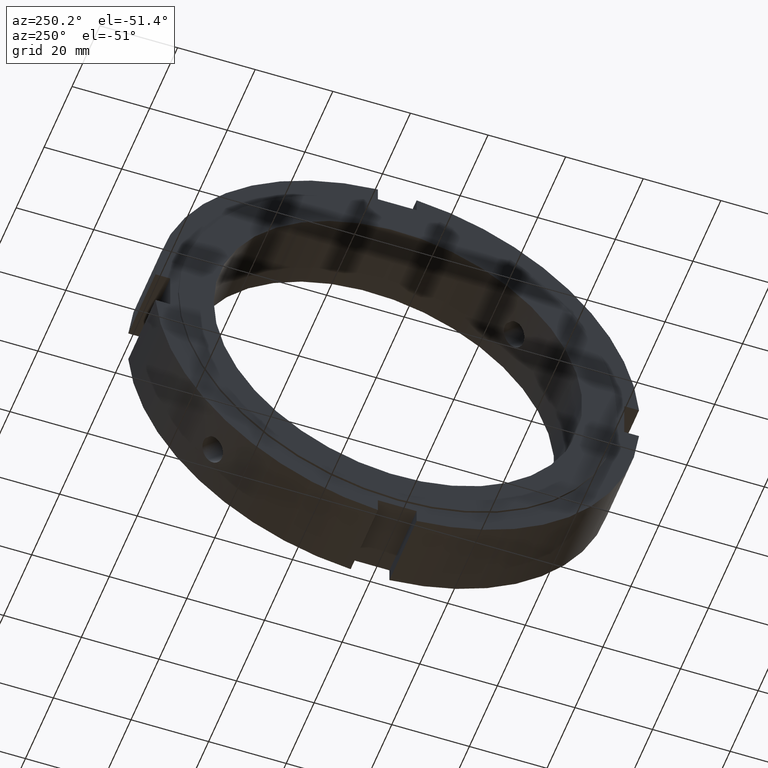
[diagram: clean part render]
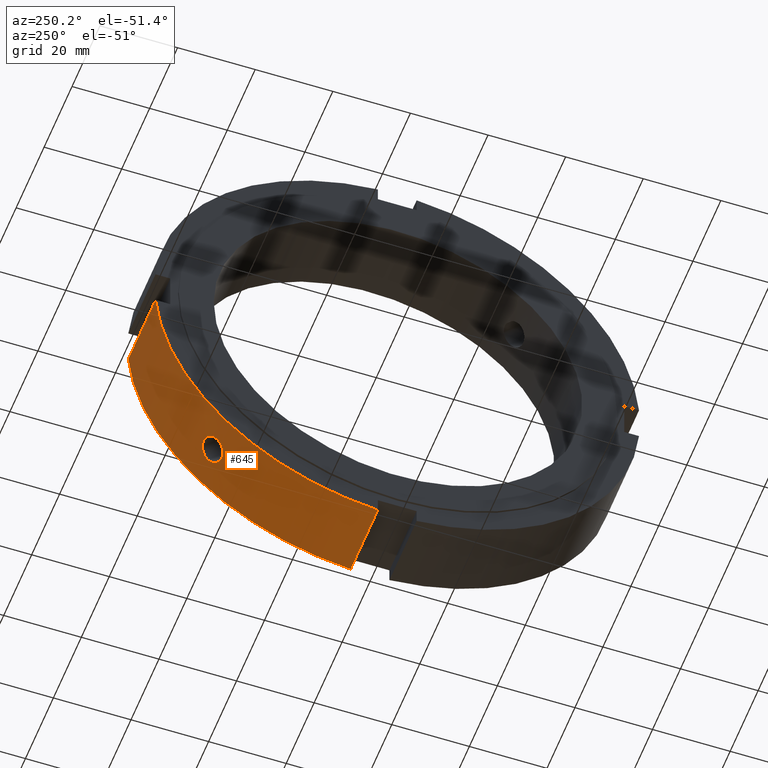
[diagram: same view with one face highlighted and labeled with its STEP entity id]
A machine part, auxiliary view. The second image highlights one B-rep face of the part: STEP entity #645.
In plain terms, the highlighted cylindrical surface (partial cylindrical patch) has radius 62.5 mm, axis along (1, 0, 0).
Its self-contained STEP definition (entity closure, byte-faithful):
#161=CARTESIAN_POINT('',(9.999999999999991,41.781576558408162,-46.481715332955140));
#162=VERTEX_POINT('',#161);
#163=CARTESIAN_POINT('',(9.999999999999989,41.781576558408162,-46.481715332955147));
#164=CARTESIAN_POINT('',(10.417390574975830,41.781576558408162,-46.481715332955147));
#165=CARTESIAN_POINT('',(10.862548440012532,41.843837050716999,-46.425985553477425));
#166=CARTESIAN_POINT('',(11.681366862238633,42.095485047032881,-46.197932555023016));
#167=CARTESIAN_POINT('',(12.055034093910241,42.284699544880340,-46.025442458133355));
#168=CARTESIAN_POINT('',(12.645104600878438,42.717642298899392,-45.623899498441610));
#169=CARTESIAN_POINT('',(12.900868432578982,42.990221997287236,-45.368033878768301));
#170=CARTESIAN_POINT('',(13.240068310107691,43.580999834136335,-44.800827434960482));
#171=CARTESIAN_POINT('',(13.323499999999990,43.899034197976967,-44.489313450341470));
#172=CARTESIAN_POINT('',(13.323499999999990,44.489313450341477,-43.899034197976960));
#173=CARTESIAN_POINT('',(13.240068310107688,44.800827434960475,-43.580999834136321));
#174=CARTESIAN_POINT('',(12.900868432578967,45.368033878768294,-42.990221997287222));
#175=CARTESIAN_POINT('',(12.645104600878444,45.623899498441610,-42.717642298899392));
#176=CARTESIAN_POINT('',(12.055034093910242,46.025442458133355,-42.284699544880340));
#177=CARTESIAN_POINT('',(11.681366862238631,46.197932555023023,-42.095485047032888));
#178=CARTESIAN_POINT('',(10.862548440012535,46.425985553477432,-41.843837050717013));
#179=CARTESIAN_POINT('',(10.417390574975826,46.481715332955133,-41.781576558408169));
#180=CARTESIAN_POINT('',(9.582609425024156,46.481715332955133,-41.781576558408169));
#181=CARTESIAN_POINT('',(9.137451559987447,46.425985553477432,-41.843837050717013));
#182=CARTESIAN_POINT('',(8.318633137761349,46.197932555023023,-42.095485047032888));
#183=CARTESIAN_POINT('',(7.944965906089738,46.025442458133355,-42.284699544880340));
#184=CARTESIAN_POINT('',(7.354895399121539,45.623899498441610,-42.717642298899392));
#185=CARTESIAN_POINT('',(7.099131567421019,45.368033878768308,-42.990221997287236));
#186=CARTESIAN_POINT('',(6.759931689892297,44.800827434960489,-43.580999834136335));
#187=CARTESIAN_POINT('',(6.676499999999991,44.489313450341477,-43.899034197976960));
#188=CARTESIAN_POINT('',(6.676499999999991,43.899034197976967,-44.489313450341470));
#189=CARTESIAN_POINT('',(6.759931689892290,43.580999834136335,-44.800827434960482));
#190=CARTESIAN_POINT('',(7.099131567421005,42.990221997287236,-45.368033878768301));
#191=CARTESIAN_POINT('',(7.354895399121542,42.717642298899392,-45.623899498441610));
#192=CARTESIAN_POINT('',(7.944965906089740,42.284699544880340,-46.025442458133355));
#193=CARTESIAN_POINT('',(8.318633137761349,42.095485047032881,-46.197932555023016));
#194=CARTESIAN_POINT('',(9.137451559987451,41.843837050716999,-46.425985553477425));
#195=CARTESIAN_POINT('',(9.582609425024156,41.781576558408162,-46.481715332955147));
#196=CARTESIAN_POINT('',(9.999999999999991,41.781576558408162,-46.481715332955147));
#197=B_SPLINE_CURVE_WITH_KNOTS('',3,(#163,#164,#165,#166,#167,#168,#169,#170,#171,#172,#173,#174,#175,#176,#177,#178,#179,#180,#181,#182,#183,#184,#185,#186,#187,#188,#189,#190,#191,#192,#193,#194,#195,#196),.UNSPECIFIED.,.T.,.U.,(4,2,2,2,2,2,2,2,2,2,2,2,2,2,2,2,4),(0.0,0.125217172492751,0.250434344985502,0.375651483627704,0.500868622269906,0.626085760912107,0.751302899554309,0.876520072047059,1.001737244539810,1.126954417032560,1.252171589525311,1.377388728167512,1.502605866809714,1.627823005451916,1.753040144094118,1.878257316586869,2.003474489079620),.UNSPECIFIED.);
#198=EDGE_CURVE('',#162,#162,#197,.T.);
#289=CARTESIAN_POINT('',(0.499999999999985,4.999999999999985,-62.299678971885555));
#290=VERTEX_POINT('',#289);
#299=CARTESIAN_POINT('',(19.999999999999986,4.999999999999985,-62.299678971885555));
#300=VERTEX_POINT('',#299);
#301=CARTESIAN_POINT('',(19.999999999999986,4.999999999999985,-62.299678971885555));
#302=DIRECTION('',(-1.0,0.0,0.0));
#303=VECTOR('',#302,19.500000000000000);
#304=LINE('',#301,#303);
#305=EDGE_CURVE('',#300,#290,#304,.T.);
#610=CARTESIAN_POINT('',(10.249999999999986,0.0,0.0));
#611=DIRECTION('',(1.0,0.0,0.0));
#612=DIRECTION('',(0.0,1.0,0.0));
#613=AXIS2_PLACEMENT_3D('',#610,#611,#612);
#614=CYLINDRICAL_SURFACE('',#613,62.500000000000000);
#615=ORIENTED_EDGE('',*,*,#305,.T.);
#616=CARTESIAN_POINT('',(0.499999999999985,62.299678971885555,-4.999999999999996));
#617=VERTEX_POINT('',#616);
#618=CARTESIAN_POINT('',(0.499999999999985,0.0,0.0));
#619=DIRECTION('',(1.0,0.0,0.0));
#620=DIRECTION('',(0.0,1.0,0.0));
#621=AXIS2_PLACEMENT_3D('',#618,#619,#620);
#622=CIRCLE('',#621,62.500000000000000);
#623=EDGE_CURVE('',#290,#617,#622,.T.);
#624=ORIENTED_EDGE('',*,*,#623,.T.);
#625=CARTESIAN_POINT('',(19.999999999999986,62.299678971885555,-4.999999999999996));
#626=VERTEX_POINT('',#625);
#627=CARTESIAN_POINT('',(0.499999999999986,62.299678971885555,-4.999999999999996));
#628=DIRECTION('',(1.0,0.0,0.0));
#629=VECTOR('',#628,19.500000000000000);
#630=LINE('',#627,#629);
#631=EDGE_CURVE('',#617,#626,#630,.T.);
#632=ORIENTED_EDGE('',*,*,#631,.T.);
#633=CARTESIAN_POINT('',(19.999999999999986,0.0,0.0));
#634=DIRECTION('',(1.0,0.0,0.0));
#635=DIRECTION('',(0.0,1.0,0.0));
#636=AXIS2_PLACEMENT_3D('',#633,#634,#635);
#637=CIRCLE('',#636,62.500000000000000);
#638=EDGE_CURVE('',#300,#626,#637,.T.);
#639=ORIENTED_EDGE('',*,*,#638,.F.);
#640=EDGE_LOOP('',(#615,#624,#632,#639));
#641=FACE_OUTER_BOUND('',#640,.T.);
#642=ORIENTED_EDGE('',*,*,#198,.T.);
#643=EDGE_LOOP('',(#642));
#644=FACE_BOUND('',#643,.T.);
#645=ADVANCED_FACE('',(#641,#644),#614,.T.);